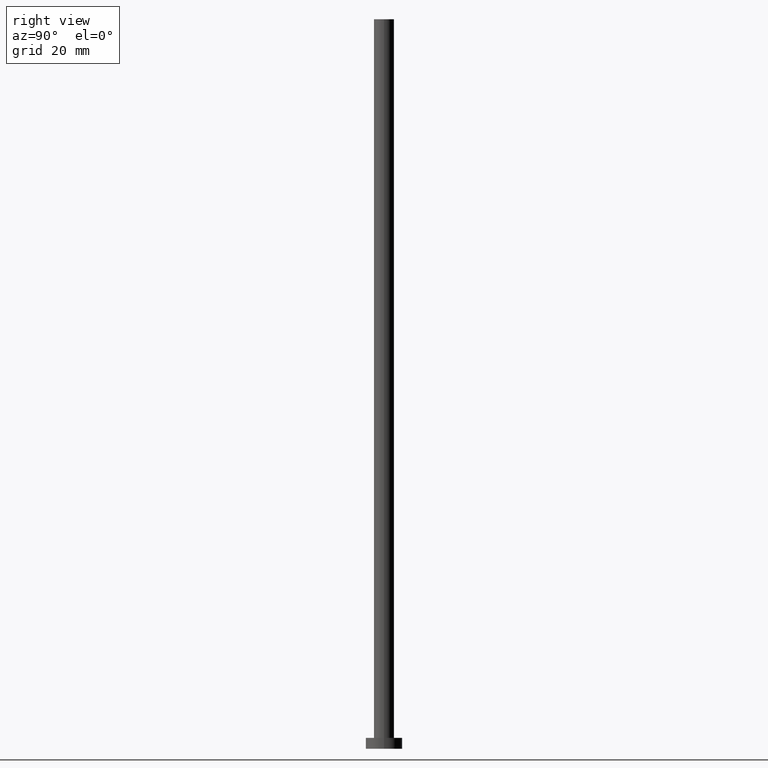
[diagram: clean part render]
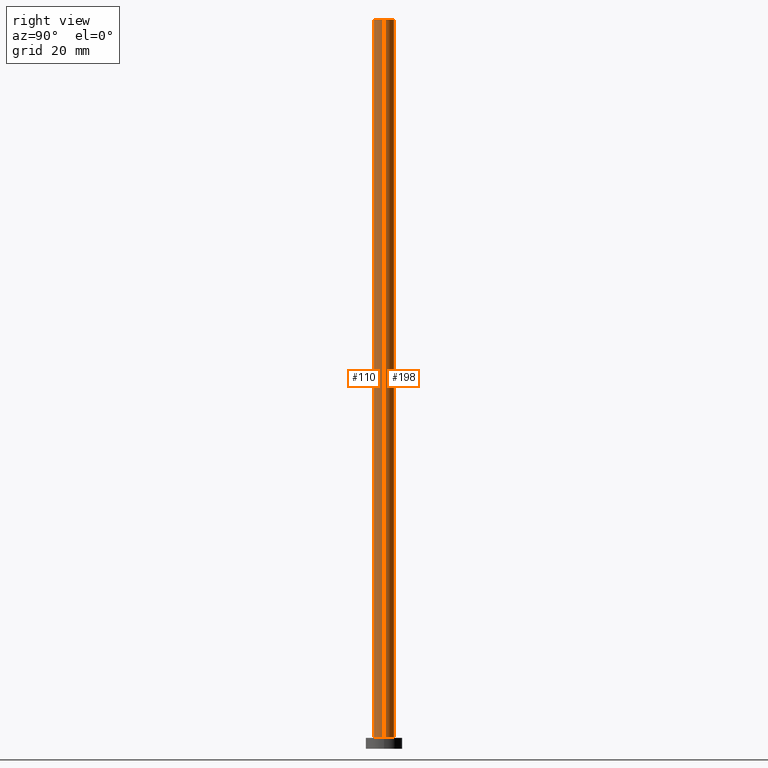
[diagram: same view with one multi-face feature highlighted, each face labeled with its STEP entity id]
A machine part, right view. The highlighted faces form ONE feature: a constant-radius fillet chain: 2 tangent blend faces with common blend radius 2.75 mm. The faces share edges in the B-rep.
Their STEP definitions:
[1] entity #198 (Cylinder):
#2 = ORIENTED_EDGE ( 'NONE', *, *, #71, .T. ) ;
#6 = DIRECTION ( 'NONE',  ( -0.000000000000000000, -0.000000000000000000, -1.000000000000000000 ) ) ;
#20 = VERTEX_POINT ( 'NONE', #103 ) ;
#29 = DIRECTION ( 'NONE',  ( -0.000000000000000000, -0.000000000000000000, -1.000000000000000000 ) ) ;
#40 = EDGE_CURVE ( 'NONE', #85, #20, #49, .T. ) ;
#41 = CARTESIAN_POINT ( 'NONE',  ( -2.750000000000000000, 0.000000000000000000, 3.000000000000000000 ) ) ;
#49 = CIRCLE ( 'NONE', #236, 2.750000000000000000 ) ;
#51 = CYLINDRICAL_SURFACE ( 'NONE', #131, 2.750000000000000000 ) ;
#65 = ORIENTED_EDGE ( 'NONE', *, *, #127, .F. ) ;
#68 = VERTEX_POINT ( 'NONE', #41 ) ;
#71 = EDGE_CURVE ( 'NONE', #223, #68, #243, .T. ) ;
#84 = CARTESIAN_POINT ( 'NONE',  ( -2.750000000000000000, 0.000000000000000000, 200.0000000000000000 ) ) ;
#85 = VERTEX_POINT ( 'NONE', #120 ) ;
#87 = DIRECTION ( 'NONE',  ( 0.000000000000000000, 0.000000000000000000, 1.000000000000000000 ) ) ;
#96 = VECTOR ( 'NONE', #6, 1000.000000000000000 ) ;
#103 = CARTESIAN_POINT ( 'NONE',  ( -2.750000000000000000, 0.000000000000000000, 200.0000000000000000 ) ) ;
#104 = LINE ( 'NONE', #84, #108 ) ;
#108 = VECTOR ( 'NONE', #159, 1000.000000000000000 ) ;
#120 = CARTESIAN_POINT ( 'NONE',  ( 2.750000000000000000, 3.367778697655221012E-16, 200.0000000000000000 ) ) ;
#123 = CARTESIAN_POINT ( 'NONE',  ( 0.000000000000000000, 0.000000000000000000, 3.000000000000000000 ) ) ;
#124 = LINE ( 'NONE', #202, #96 ) ;
#127 = EDGE_CURVE ( 'NONE', #20, #68, #104, .T. ) ;
#128 = CARTESIAN_POINT ( 'NONE',  ( 2.750000000000000000, 3.367778697655221012E-16, 3.000000000000000000 ) ) ;
#131 = AXIS2_PLACEMENT_3D ( 'NONE', #150, #29, #219 ) ;
#135 = DIRECTION ( 'NONE',  ( 0.000000000000000000, 0.000000000000000000, 1.000000000000000000 ) ) ;
#150 = CARTESIAN_POINT ( 'NONE',  ( 0.000000000000000000, 0.000000000000000000, 200.0000000000000000 ) ) ;
#154 = ORIENTED_EDGE ( 'NONE', *, *, #208, .T. ) ;
#159 = DIRECTION ( 'NONE',  ( -0.000000000000000000, -0.000000000000000000, -1.000000000000000000 ) ) ;
#163 = AXIS2_PLACEMENT_3D ( 'NONE', #123, #135, #211 ) ;
#171 = DIRECTION ( 'NONE',  ( 1.000000000000000000, 0.000000000000000000, 0.000000000000000000 ) ) ;
#190 = EDGE_LOOP ( 'NONE', ( #251, #154, #2, #65 ) ) ;
#198 = ADVANCED_FACE ( 'NONE', ( #234 ), #51, .T. ) ;
#202 = CARTESIAN_POINT ( 'NONE',  ( 2.750000000000000000, 3.367778697655221012E-16, 200.0000000000000000 ) ) ;
#208 = EDGE_CURVE ( 'NONE', #85, #223, #124, .T. ) ;
#211 = DIRECTION ( 'NONE',  ( 1.000000000000000000, 0.000000000000000000, 0.000000000000000000 ) ) ;
#219 = DIRECTION ( 'NONE',  ( -1.000000000000000000, 0.000000000000000000, 0.000000000000000000 ) ) ;
#223 = VERTEX_POINT ( 'NONE', #128 ) ;
#231 = CARTESIAN_POINT ( 'NONE',  ( 0.000000000000000000, 0.000000000000000000, 200.0000000000000000 ) ) ;
#234 = FACE_OUTER_BOUND ( 'NONE', #190, .T. ) ;
#236 = AXIS2_PLACEMENT_3D ( 'NONE', #231, #87, #171 ) ;
#243 = CIRCLE ( 'NONE', #163, 2.750000000000000000 ) ;
#251 = ORIENTED_EDGE ( 'NONE', *, *, #40, .F. ) ;
[2] entity #110 (Cylinder):
#1 = CARTESIAN_POINT ( 'NONE',  ( 0.000000000000000000, 0.000000000000000000, 200.0000000000000000 ) ) ;
#6 = DIRECTION ( 'NONE',  ( -0.000000000000000000, -0.000000000000000000, -1.000000000000000000 ) ) ;
#14 = ORIENTED_EDGE ( 'NONE', *, *, #81, .F. ) ;
#20 = VERTEX_POINT ( 'NONE', #103 ) ;
#21 = DIRECTION ( 'NONE',  ( 1.000000000000000000, 0.000000000000000000, 0.000000000000000000 ) ) ;
#32 = CIRCLE ( 'NONE', #228, 2.750000000000000000 ) ;
#41 = CARTESIAN_POINT ( 'NONE',  ( -2.750000000000000000, 0.000000000000000000, 3.000000000000000000 ) ) ;
#54 = AXIS2_PLACEMENT_3D ( 'NONE', #64, #230, #250 ) ;
#60 = AXIS2_PLACEMENT_3D ( 'NONE', #161, #111, #75 ) ;
#64 = CARTESIAN_POINT ( 'NONE',  ( 0.000000000000000000, 0.000000000000000000, 200.0000000000000000 ) ) ;
#68 = VERTEX_POINT ( 'NONE', #41 ) ;
#75 = DIRECTION ( 'NONE',  ( 1.000000000000000000, 0.000000000000000000, 0.000000000000000000 ) ) ;
#81 = EDGE_CURVE ( 'NONE', #20, #85, #32, .T. ) ;
#84 = CARTESIAN_POINT ( 'NONE',  ( -2.750000000000000000, 0.000000000000000000, 200.0000000000000000 ) ) ;
#85 = VERTEX_POINT ( 'NONE', #120 ) ;
#96 = VECTOR ( 'NONE', #6, 1000.000000000000000 ) ;
#103 = CARTESIAN_POINT ( 'NONE',  ( -2.750000000000000000, 0.000000000000000000, 200.0000000000000000 ) ) ;
#104 = LINE ( 'NONE', #84, #108 ) ;
#108 = VECTOR ( 'NONE', #159, 1000.000000000000000 ) ;
#110 = ADVANCED_FACE ( 'NONE', ( #189 ), #169, .T. ) ;
#111 = DIRECTION ( 'NONE',  ( 0.000000000000000000, 0.000000000000000000, 1.000000000000000000 ) ) ;
#120 = CARTESIAN_POINT ( 'NONE',  ( 2.750000000000000000, 3.367778697655221012E-16, 200.0000000000000000 ) ) ;
#121 = ORIENTED_EDGE ( 'NONE', *, *, #203, .T. ) ;
#124 = LINE ( 'NONE', #202, #96 ) ;
#127 = EDGE_CURVE ( 'NONE', #20, #68, #104, .T. ) ;
#128 = CARTESIAN_POINT ( 'NONE',  ( 2.750000000000000000, 3.367778697655221012E-16, 3.000000000000000000 ) ) ;
#136 = ORIENTED_EDGE ( 'NONE', *, *, #208, .F. ) ;
#139 = CIRCLE ( 'NONE', #60, 2.750000000000000000 ) ;
#155 = DIRECTION ( 'NONE',  ( 0.000000000000000000, 0.000000000000000000, 1.000000000000000000 ) ) ;
#159 = DIRECTION ( 'NONE',  ( -0.000000000000000000, -0.000000000000000000, -1.000000000000000000 ) ) ;
#161 = CARTESIAN_POINT ( 'NONE',  ( 0.000000000000000000, 0.000000000000000000, 3.000000000000000000 ) ) ;
#169 = CYLINDRICAL_SURFACE ( 'NONE', #54, 2.750000000000000000 ) ;
#183 = ORIENTED_EDGE ( 'NONE', *, *, #127, .T. ) ;
#189 = FACE_OUTER_BOUND ( 'NONE', #205, .T. ) ;
#202 = CARTESIAN_POINT ( 'NONE',  ( 2.750000000000000000, 3.367778697655221012E-16, 200.0000000000000000 ) ) ;
#203 = EDGE_CURVE ( 'NONE', #68, #223, #139, .T. ) ;
#205 = EDGE_LOOP ( 'NONE', ( #136, #14, #183, #121 ) ) ;
#208 = EDGE_CURVE ( 'NONE', #85, #223, #124, .T. ) ;
#223 = VERTEX_POINT ( 'NONE', #128 ) ;
#228 = AXIS2_PLACEMENT_3D ( 'NONE', #1, #155, #21 ) ;
#230 = DIRECTION ( 'NONE',  ( -0.000000000000000000, -0.000000000000000000, -1.000000000000000000 ) ) ;
#250 = DIRECTION ( 'NONE',  ( -1.000000000000000000, 0.000000000000000000, 0.000000000000000000 ) ) ;